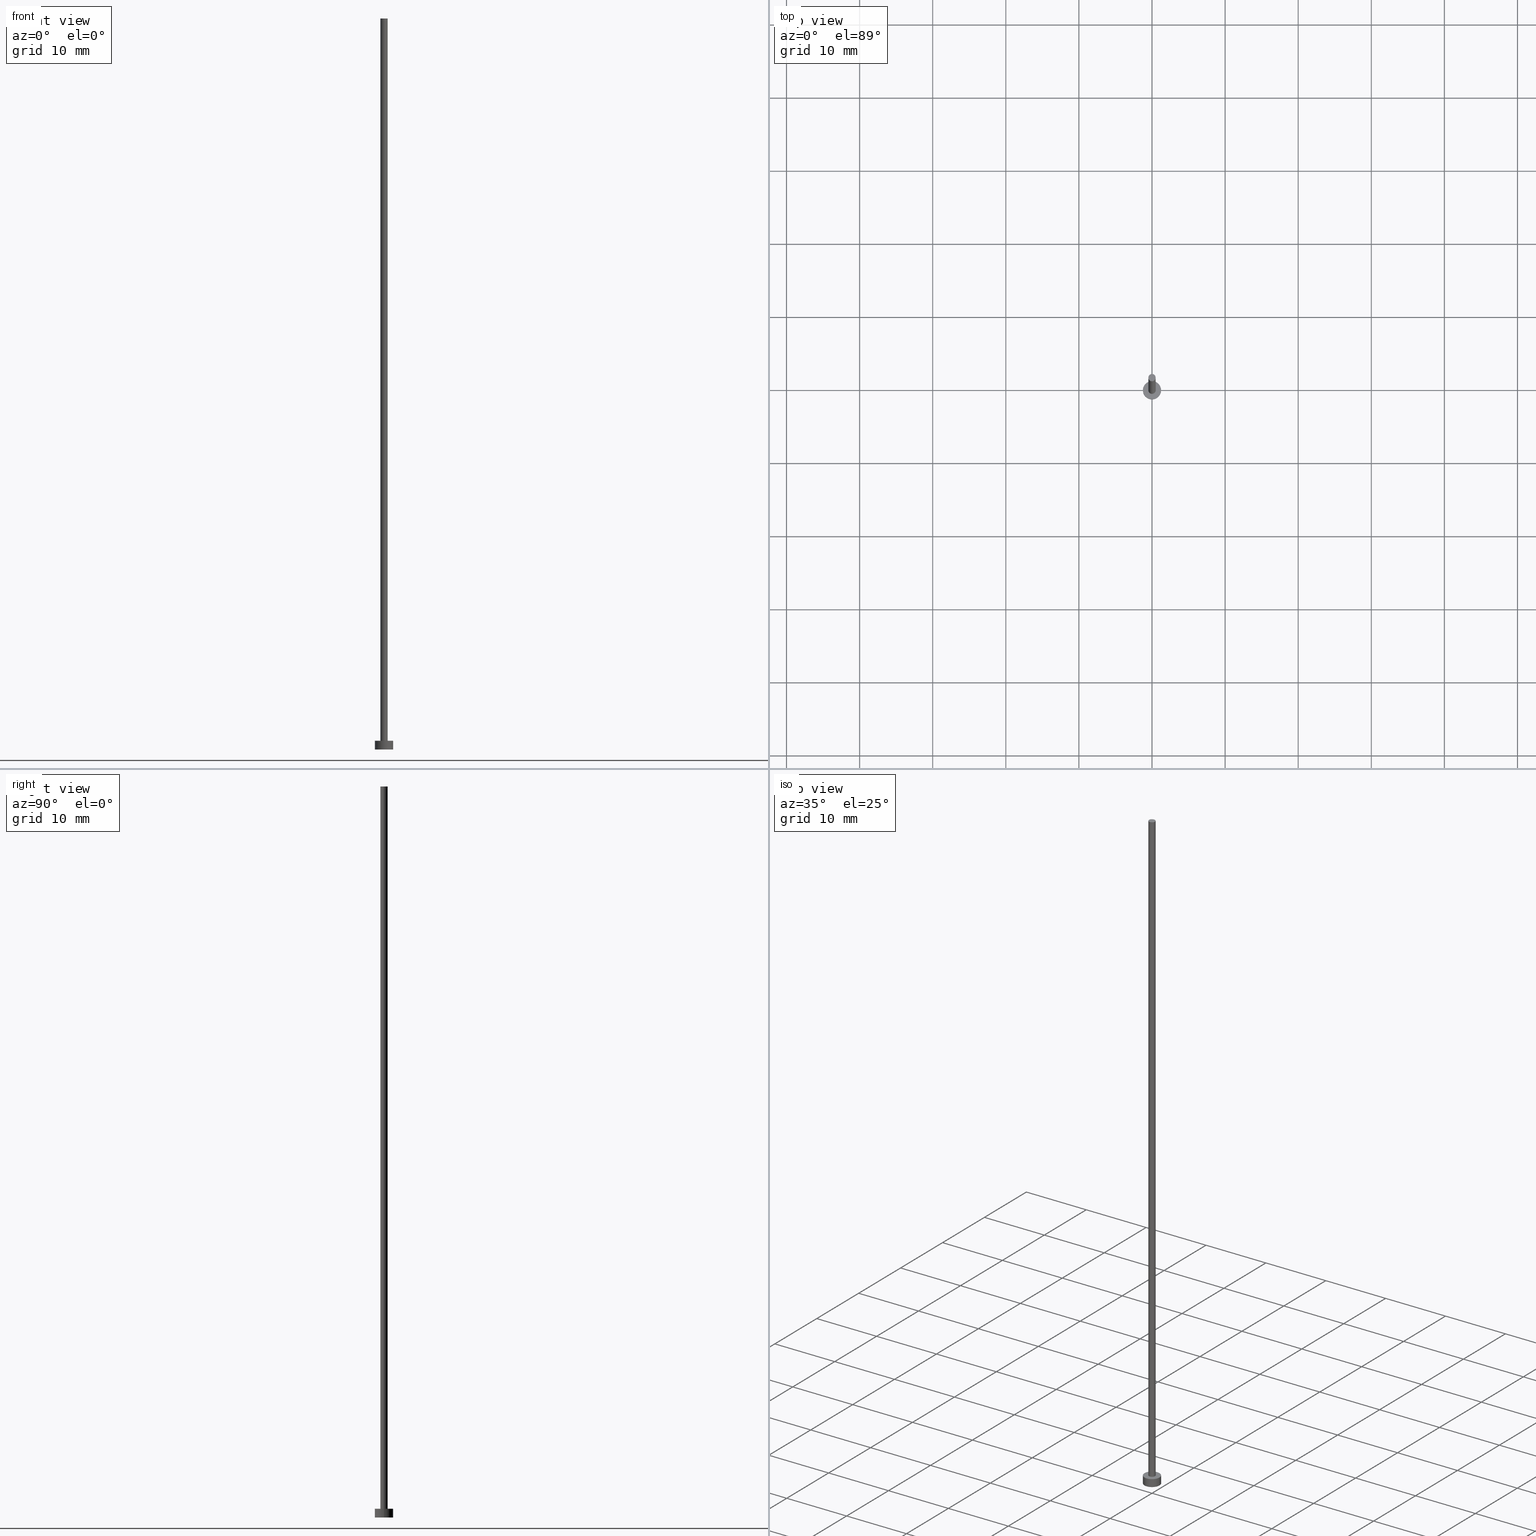
[diagram: canonical four-view strip — front | top / right | iso, engineering-drawing reading convention]
A machine part, canonical four-view strip (front | top / right | iso — engineering-drawing reading convention). The complete STEP part file that produces these views, byte-faithful:
ISO-10303-21;
HEADER;
FILE_DESCRIPTION (( 'STEP AP203' ),
    '1' );
FILE_NAME ('c041.STEP',
    '2025-01-10T07:01:05',
    ( '' ),
    ( '' ),
    'SwSTEP 2.0',
    'SolidWorks 2019',
    '' );
FILE_SCHEMA (( 'CONFIG_CONTROL_DESIGN' ));
ENDSEC;

DATA;
#1 = COORDINATED_UNIVERSAL_TIME_OFFSET ( 1, 0, .AHEAD. ) ;
#2 = PERSON_AND_ORGANIZATION_ROLE ( 'creator' ) ;
#3 = ADVANCED_FACE ( 'NONE', ( #73 ), #168, .T. ) ;
#4 = ORIENTED_EDGE ( 'NONE', *, *, #186, .F. ) ;
#5 = EDGE_LOOP ( 'NONE', ( #25, #167, #219, #148 ) ) ;
#6 = AXIS2_PLACEMENT_3D ( 'NONE', #111, #10, #96 ) ;
#7 = EDGE_LOOP ( 'NONE', ( #204, #187 ) ) ;
#8 =( GEOMETRIC_REPRESENTATION_CONTEXT ( 3 ) GLOBAL_UNCERTAINTY_ASSIGNED_CONTEXT ( ( #94 ) ) GLOBAL_UNIT_ASSIGNED_CONTEXT ( ( #120, #47, #160 ) ) REPRESENTATION_CONTEXT ( 'NONE', 'WORKASPACE' ) );
#9 = ORIENTED_EDGE ( 'NONE', *, *, #218, .F. ) ;
#10 = DIRECTION ( 'NONE',  ( 0.000000000000000000, 0.000000000000000000, 1.000000000000000000 ) ) ;
#11 = CARTESIAN_POINT ( 'NONE',  ( -1.250000000000000000, 0.000000000000000000, 0.000000000000000000 ) ) ;
#12 = AXIS2_PLACEMENT_3D ( 'NONE', #115, #232, #173 ) ;
#13 = DIRECTION ( 'NONE',  ( 0.000000000000000000, 0.000000000000000000, 1.000000000000000000 ) ) ;
#14 = COORDINATED_UNIVERSAL_TIME_OFFSET ( 1, 0, .AHEAD. ) ;
#15 = FACE_OUTER_BOUND ( 'NONE', #30, .T. ) ;
#16 = LINE ( 'NONE', #102, #155 ) ;
#17 = CIRCLE ( 'NONE', #42, 0.5000000000000000000 ) ;
#18 = APPROVAL_STATUS ( 'not_yet_approved' ) ;
#19 = DIRECTION ( 'NONE',  ( 0.000000000000000000, 0.000000000000000000, 1.000000000000000000 ) ) ;
#20 = CC_DESIGN_APPROVAL ( #121, ( #166 ) ) ;
#21 = EDGE_CURVE ( 'NONE', #29, #225, #75, .T. ) ;
#22 = CALENDAR_DATE ( 2025, 10, 1 ) ;
#23 = APPLICATION_PROTOCOL_DEFINITION ( 'international standard', 'config_control_design', 1994, #211 ) ;
#24 = PERSON_AND_ORGANIZATION ( #196, #157 ) ;
#25 = ORIENTED_EDGE ( 'NONE', *, *, #63, .F. ) ;
#26 = ADVANCED_FACE ( 'NONE', ( #131, #56 ), #206, .T. ) ;
#27 = AXIS2_PLACEMENT_3D ( 'NONE', #142, #180, #86 ) ;
#28 = EDGE_LOOP ( 'NONE', ( #223, #241 ) ) ;
#29 = VERTEX_POINT ( 'NONE', #240 ) ;
#30 = EDGE_LOOP ( 'NONE', ( #49, #205 ) ) ;
#31 = AXIS2_PLACEMENT_3D ( 'NONE', #116, #64, #98 ) ;
#32 = ORIENTED_EDGE ( 'NONE', *, *, #114, .T. ) ;
#33 = LINE ( 'NONE', #245, #161 ) ;
#34 = CARTESIAN_POINT ( 'NONE',  ( 0.5000000000000000000, 6.123233995736766036E-17, 1.199999999999999956 ) ) ;
#35 = DIRECTION ( 'NONE',  ( 1.000000000000000000, 0.000000000000000000, 0.000000000000000000 ) ) ;
#36 = VECTOR ( 'NONE', #252, 1000.000000000000000 ) ;
#37 = APPROVAL_DATE_TIME ( #230, #107 ) ;
#38 = DIRECTION ( 'NONE',  ( -0.000000000000000000, -0.000000000000000000, -1.000000000000000000 ) ) ;
#39 = PERSON_AND_ORGANIZATION ( #196, #157 ) ;
#40 = CARTESIAN_POINT ( 'NONE',  ( 0.000000000000000000, 0.000000000000000000, 0.000000000000000000 ) ) ;
#41 = EDGE_CURVE ( 'NONE', #76, #52, #16, .T. ) ;
#42 = AXIS2_PLACEMENT_3D ( 'NONE', #113, #193, #35 ) ;
#43 = LOCAL_TIME ( 8, 1, 5.000000000000000000, #1 ) ;
#44 = APPROVAL_STATUS ( 'not_yet_approved' ) ;
#45 = COORDINATED_UNIVERSAL_TIME_OFFSET ( 1, 0, .AHEAD. ) ;
#46 = CC_DESIGN_DATE_AND_TIME_ASSIGNMENT ( #228, #197, ( #239 ) ) ;
#47 =( NAMED_UNIT ( * ) PLANE_ANGLE_UNIT ( ) SI_UNIT ( $, .RADIAN. ) );
#48 = AXIS2_PLACEMENT_3D ( 'NONE', #134, #158, #80 ) ;
#49 = ORIENTED_EDGE ( 'NONE', *, *, #159, .F. ) ;
#50 = ADVANCED_FACE ( 'NONE', ( #62 ), #101, .T. ) ;
#51 = ORIENTED_EDGE ( 'NONE', *, *, #89, .T. ) ;
#52 = VERTEX_POINT ( 'NONE', #136 ) ;
#53 = DIRECTION ( 'NONE',  ( -0.000000000000000000, -0.000000000000000000, -1.000000000000000000 ) ) ;
#54 = DESIGN_CONTEXT ( 'detailed design', #211, 'design' ) ;
#55 = CC_DESIGN_DATE_AND_TIME_ASSIGNMENT ( #182, #143, ( #166 ) ) ;
#56 = FACE_OUTER_BOUND ( 'NONE', #28, .T. ) ;
#57 = CYLINDRICAL_SURFACE ( 'NONE', #242, 1.250000000000000000 ) ;
#58 = CARTESIAN_POINT ( 'NONE',  ( 0.000000000000000000, 0.000000000000000000, 1.199999999999999956 ) ) ;
#59 = APPROVAL_ROLE ( '' ) ;
#60 = CARTESIAN_POINT ( 'NONE',  ( 0.000000000000000000, 0.000000000000000000, 1.199999999999999956 ) ) ;
#61 = CIRCLE ( 'NONE', #202, 1.250000000000000000 ) ;
#62 = FACE_OUTER_BOUND ( 'NONE', #171, .T. ) ;
#63 = EDGE_CURVE ( 'NONE', #76, #221, #214, .T. ) ;
#64 = DIRECTION ( 'NONE',  ( 0.000000000000000000, 0.000000000000000000, 1.000000000000000000 ) ) ;
#65 = COORDINATED_UNIVERSAL_TIME_OFFSET ( 1, 0, .AHEAD. ) ;
#66 = APPROVAL_ROLE ( '' ) ;
#67 = DIRECTION ( 'NONE',  ( 1.000000000000000000, 0.000000000000000000, 0.000000000000000000 ) ) ;
#68 = CC_DESIGN_APPROVAL ( #172, ( #165 ) ) ;
#69 = APPROVAL_DATE_TIME ( #201, #121 ) ;
#70 = APPROVAL_STATUS ( 'not_yet_approved' ) ;
#71 = ADVANCED_FACE ( 'NONE', ( #153 ), #57, .T. ) ;
#72 = ORIENTED_EDGE ( 'NONE', *, *, #21, .T. ) ;
#73 = FACE_OUTER_BOUND ( 'NONE', #7, .T. ) ;
#74 = VERTEX_POINT ( 'NONE', #11 ) ;
#75 = LINE ( 'NONE', #150, #251 ) ;
#76 = VERTEX_POINT ( 'NONE', #194 ) ;
#77 = AXIS2_PLACEMENT_3D ( 'NONE', #60, #137, #78 ) ;
#78 = DIRECTION ( 'NONE',  ( -1.000000000000000000, 0.000000000000000000, 0.000000000000000000 ) ) ;
#79 = LOCAL_TIME ( 8, 1, 5.000000000000000000, #45 ) ;
#80 = DIRECTION ( 'NONE',  ( -1.000000000000000000, 0.000000000000000000, 0.000000000000000000 ) ) ;
#81 = CYLINDRICAL_SURFACE ( 'NONE', #192, 0.5000000000000000000 ) ;
#82 = DIRECTION ( 'NONE',  ( 1.000000000000000000, 0.000000000000000000, 0.000000000000000000 ) ) ;
#83 = AXIS2_PLACEMENT_3D ( 'NONE', #227, #209, #99 ) ;
#84 = CYLINDRICAL_SURFACE ( 'NONE', #48, 0.5000000000000000000 ) ;
#85 = CC_DESIGN_PERSON_AND_ORGANIZATION_ASSIGNMENT ( #203, #104, ( #165 ) ) ;
#86 = DIRECTION ( 'NONE',  ( 1.000000000000000000, 0.000000000000000000, 0.000000000000000000 ) ) ;
#87 = CIRCLE ( 'NONE', #220, 1.250000000000000000 ) ;
#88 = PRODUCT ( 'c041', 'c041', '', ( #162 ) ) ;
#89 = EDGE_CURVE ( 'NONE', #225, #190, #17, .T. ) ;
#90 = ORIENTED_EDGE ( 'NONE', *, *, #21, .F. ) ;
#91 = VERTEX_POINT ( 'NONE', #154 ) ;
#92 = CLOSED_SHELL ( 'NONE', ( #105, #71, #50, #26, #141, #178, #3 ) ) ;
#93 = DIRECTION ( 'NONE',  ( 0.000000000000000000, 0.000000000000000000, 1.000000000000000000 ) ) ;
#94 = UNCERTAINTY_MEASURE_WITH_UNIT (LENGTH_MEASURE( 1.000000000000000082E-05 ), #120, 'distance_accuracy_value', 'NONE');
#95 = CARTESIAN_POINT ( 'NONE',  ( 0.000000000000000000, 0.000000000000000000, 100.0000000000000000 ) ) ;
#96 = DIRECTION ( 'NONE',  ( 1.000000000000000000, 0.000000000000000000, -0.000000000000000000 ) ) ;
#97 = EDGE_CURVE ( 'NONE', #91, #29, #128, .T. ) ;
#98 = DIRECTION ( 'NONE',  ( 1.000000000000000000, 0.000000000000000000, -0.000000000000000000 ) ) ;
#99 = DIRECTION ( 'NONE',  ( 1.000000000000000000, 0.000000000000000000, 0.000000000000000000 ) ) ;
#100 = CALENDAR_DATE ( 2025, 10, 1 ) ;
#101 = CYLINDRICAL_SURFACE ( 'NONE', #77, 1.250000000000000000 ) ;
#102 = CARTESIAN_POINT ( 'NONE',  ( 1.250000000000000000, 1.530808498934191571E-16, 1.199999999999999956 ) ) ;
#103 = PERSON_AND_ORGANIZATION ( #196, #157 ) ;
#104 = PERSON_AND_ORGANIZATION_ROLE ( 'creator' ) ;
#105 = ADVANCED_FACE ( 'NONE', ( #229 ), #81, .T. ) ;
#106 = ORIENTED_EDGE ( 'NONE', *, *, #41, .F. ) ;
#107 = APPROVAL ( #18, 'NEUR�EN�' ) ;
#108 = EDGE_LOOP ( 'NONE', ( #188, #4, #72, #51 ) ) ;
#109 = ORIENTED_EDGE ( 'NONE', *, *, #97, .F. ) ;
#110 = LOCAL_TIME ( 8, 1, 5.000000000000000000, #140 ) ;
#111 = CARTESIAN_POINT ( 'NONE',  ( 0.000000000000000000, 0.000000000000000000, 1.199999999999999956 ) ) ;
#112 = DIRECTION ( 'NONE',  ( -0.000000000000000000, -0.000000000000000000, -1.000000000000000000 ) ) ;
#113 = CARTESIAN_POINT ( 'NONE',  ( 0.000000000000000000, 0.000000000000000000, 1.199999999999999956 ) ) ;
#114 = EDGE_CURVE ( 'NONE', #221, #74, #33, .T. ) ;
#115 = CARTESIAN_POINT ( 'NONE',  ( 0.000000000000000000, 0.000000000000000000, 100.0000000000000000 ) ) ;
#116 = CARTESIAN_POINT ( 'NONE',  ( 0.000000000000000000, 0.000000000000000000, 0.000000000000000000 ) ) ;
#117 = CARTESIAN_POINT ( 'NONE',  ( 0.000000000000000000, 0.000000000000000000, 1.199999999999999956 ) ) ;
#118 = CALENDAR_DATE ( 2025, 10, 1 ) ;
#119 = LOCAL_TIME ( 8, 1, 5.000000000000000000, #65 ) ;
#120 =( LENGTH_UNIT ( ) NAMED_UNIT ( * ) SI_UNIT ( .MILLI., .METRE. ) );
#121 = APPROVAL ( #44, 'NEUR�EN�' ) ;
#122 = APPROVAL_ROLE ( '' ) ;
#123 = APPROVAL_DATE_TIME ( #217, #172 ) ;
#124 = EDGE_CURVE ( 'NONE', #221, #76, #87, .T. ) ;
#125 = CIRCLE ( 'NONE', #83, 0.5000000000000000000 ) ;
#126 = MANIFOLD_SOLID_BREP ( 'P�idat vysunut�m3', #92 ) ;
#127 = ORIENTED_EDGE ( 'NONE', *, *, #218, .T. ) ;
#128 = CIRCLE ( 'NONE', #12, 0.5000000000000000000 ) ;
#129 = EDGE_LOOP ( 'NONE', ( #169, #9 ) ) ;
#130 = LOCAL_TIME ( 8, 1, 5.000000000000000000, #14 ) ;
#131 = FACE_BOUND ( 'NONE', #129, .T. ) ;
#132 = CC_DESIGN_APPROVAL ( #107, ( #239 ) ) ;
#133 = DIRECTION ( 'NONE',  ( -1.000000000000000000, 0.000000000000000000, 0.000000000000000000 ) ) ;
#134 = CARTESIAN_POINT ( 'NONE',  ( 0.000000000000000000, 0.000000000000000000, 100.0000000000000000 ) ) ;
#135 = APPLICATION_CONTEXT ( 'configuration controlled 3d designs of mechanical parts and assemblies' ) ;
#136 = CARTESIAN_POINT ( 'NONE',  ( 1.250000000000000000, 1.530808498934191571E-16, 0.000000000000000000 ) ) ;
#137 = DIRECTION ( 'NONE',  ( -0.000000000000000000, -0.000000000000000000, -1.000000000000000000 ) ) ;
#138 = DIRECTION ( 'NONE',  ( 0.000000000000000000, 0.000000000000000000, 1.000000000000000000 ) ) ;
#139 = SHAPE_DEFINITION_REPRESENTATION ( #145, #255 ) ;
#140 = COORDINATED_UNIVERSAL_TIME_OFFSET ( 1, 0, .AHEAD. ) ;
#141 = ADVANCED_FACE ( 'NONE', ( #15 ), #176, .F. ) ;
#142 = CARTESIAN_POINT ( 'NONE',  ( 0.000000000000000000, 0.000000000000000000, 0.000000000000000000 ) ) ;
#143 = DATE_TIME_ROLE ( 'creation_date' ) ;
#144 = CALENDAR_DATE ( 2025, 10, 1 ) ;
#145 = PRODUCT_DEFINITION_SHAPE ( 'NONE', 'NONE',  #166 ) ;
#146 = APPROVAL_PERSON_ORGANIZATION ( #39, #107, #59 ) ;
#147 = EDGE_LOOP ( 'NONE', ( #109, #224, #127, #90 ) ) ;
#148 = ORIENTED_EDGE ( 'NONE', *, *, #114, .F. ) ;
#149 = ORIENTED_EDGE ( 'NONE', *, *, #159, .T. ) ;
#150 = CARTESIAN_POINT ( 'NONE',  ( -0.5000000000000000000, 0.000000000000000000, 100.0000000000000000 ) ) ;
#151 = AXIS2_PLACEMENT_3D ( 'NONE', #95, #93, #244 ) ;
#152 = FACE_OUTER_BOUND ( 'NONE', #108, .T. ) ;
#153 = FACE_OUTER_BOUND ( 'NONE', #5, .T. ) ;
#154 = CARTESIAN_POINT ( 'NONE',  ( 0.5000000000000000000, 6.123233995736766036E-17, 100.0000000000000000 ) ) ;
#155 = VECTOR ( 'NONE', #156, 1000.000000000000000 ) ;
#156 = DIRECTION ( 'NONE',  ( -0.000000000000000000, -0.000000000000000000, -1.000000000000000000 ) ) ;
#157 = ORGANIZATION ( 'NEUR�EN�', 'NEUR�EN�', '' ) ;
#158 = DIRECTION ( 'NONE',  ( -0.000000000000000000, -0.000000000000000000, -1.000000000000000000 ) ) ;
#159 = EDGE_CURVE ( 'NONE', #74, #52, #237, .T. ) ;
#160 =( NAMED_UNIT ( * ) SI_UNIT ( $, .STERADIAN. ) SOLID_ANGLE_UNIT ( ) );
#161 = VECTOR ( 'NONE', #112, 1000.000000000000000 ) ;
#162 = MECHANICAL_CONTEXT ( 'NONE', #135, 'mechanical' ) ;
#163 = PERSON_AND_ORGANIZATION ( #196, #157 ) ;
#164 = PRODUCT_RELATED_PRODUCT_CATEGORY ( 'detail', '', ( #88 ) ) ;
#165 = PRODUCT_DEFINITION_FORMATION_WITH_SPECIFIED_SOURCE ( 'LIBOVOLN�', '', #88, .NOT_KNOWN. ) ;
#166 = PRODUCT_DEFINITION ( 'NEZN�M�', '', #165, #54 ) ;
#167 = ORIENTED_EDGE ( 'NONE', *, *, #41, .T. ) ;
#168 = PLANE ( 'NONE',  #151 ) ;
#169 = ORIENTED_EDGE ( 'NONE', *, *, #89, .F. ) ;
#170 = EDGE_CURVE ( 'NONE', #91, #190, #195, .T. ) ;
#171 = EDGE_LOOP ( 'NONE', ( #106, #243, #32, #149 ) ) ;
#172 = APPROVAL ( #70, 'NEUR�EN�' ) ;
#173 = DIRECTION ( 'NONE',  ( 1.000000000000000000, 0.000000000000000000, 0.000000000000000000 ) ) ;
#174 = CARTESIAN_POINT ( 'NONE',  ( 0.5000000000000000000, 6.123233995736766036E-17, 100.0000000000000000 ) ) ;
#175 = CARTESIAN_POINT ( 'NONE',  ( -1.250000000000000000, 0.000000000000000000, 1.199999999999999956 ) ) ;
#176 = PLANE ( 'NONE',  #31 ) ;
#177 = DIRECTION ( 'NONE',  ( -0.000000000000000000, -0.000000000000000000, -1.000000000000000000 ) ) ;
#178 = ADVANCED_FACE ( 'NONE', ( #152 ), #84, .T. ) ;
#179 = PERSON_AND_ORGANIZATION ( #196, #157 ) ;
#180 = DIRECTION ( 'NONE',  ( 0.000000000000000000, 0.000000000000000000, 1.000000000000000000 ) ) ;
#181 = AXIS2_PLACEMENT_3D ( 'NONE', #58, #249, #246 ) ;
#182 = DATE_AND_TIME ( #238, #43 ) ;
#183 = CC_DESIGN_SECURITY_CLASSIFICATION ( #239, ( #165 ) ) ;
#184 = CC_DESIGN_PERSON_AND_ORGANIZATION_ASSIGNMENT ( #179, #248, ( #239 ) ) ;
#185 = SECURITY_CLASSIFICATION_LEVEL ( 'unclassified' ) ;
#186 = EDGE_CURVE ( 'NONE', #29, #91, #189, .T. ) ;
#187 = ORIENTED_EDGE ( 'NONE', *, *, #97, .T. ) ;
#188 = ORIENTED_EDGE ( 'NONE', *, *, #170, .F. ) ;
#189 = CIRCLE ( 'NONE', #233, 0.5000000000000000000 ) ;
#190 = VERTEX_POINT ( 'NONE', #34 ) ;
#191 = CARTESIAN_POINT ( 'NONE',  ( 0.000000000000000000, 0.000000000000000000, 1.199999999999999956 ) ) ;
#192 = AXIS2_PLACEMENT_3D ( 'NONE', #212, #177, #133 ) ;
#193 = DIRECTION ( 'NONE',  ( 0.000000000000000000, 0.000000000000000000, 1.000000000000000000 ) ) ;
#194 = CARTESIAN_POINT ( 'NONE',  ( 1.250000000000000000, 1.530808498934191571E-16, 1.199999999999999956 ) ) ;
#195 = LINE ( 'NONE', #174, #36 ) ;
#196 = PERSON ( 'NEUR�EN�', 'NEUR�EN�', 'NEUR�EN�', ('NEUR�EN�'), ('NEUR�EN�'), ('NEUR�EN�') ) ;
#197 = DATE_TIME_ROLE ( 'classification_date' ) ;
#198 = DIRECTION ( 'NONE',  ( 1.000000000000000000, 0.000000000000000000, 0.000000000000000000 ) ) ;
#199 = CC_DESIGN_PERSON_AND_ORGANIZATION_ASSIGNMENT ( #24, #254, ( #165 ) ) ;
#200 = PERSON_AND_ORGANIZATION_ROLE ( 'design_owner' ) ;
#201 = DATE_AND_TIME ( #22, #110 ) ;
#202 = AXIS2_PLACEMENT_3D ( 'NONE', #40, #19, #67 ) ;
#203 = PERSON_AND_ORGANIZATION ( #196, #157 ) ;
#204 = ORIENTED_EDGE ( 'NONE', *, *, #186, .T. ) ;
#205 = ORIENTED_EDGE ( 'NONE', *, *, #226, .F. ) ;
#206 = PLANE ( 'NONE',  #6 ) ;
#207 = DIRECTION ( 'NONE',  ( 1.000000000000000000, 0.000000000000000000, 0.000000000000000000 ) ) ;
#208 = CC_DESIGN_PERSON_AND_ORGANIZATION_ASSIGNMENT ( #103, #200, ( #88 ) ) ;
#209 = DIRECTION ( 'NONE',  ( 0.000000000000000000, 0.000000000000000000, 1.000000000000000000 ) ) ;
#210 = DIRECTION ( 'NONE',  ( -1.000000000000000000, 0.000000000000000000, 0.000000000000000000 ) ) ;
#211 = APPLICATION_CONTEXT ( 'configuration controlled 3d designs of mechanical parts and assemblies' ) ;
#212 = CARTESIAN_POINT ( 'NONE',  ( 0.000000000000000000, 0.000000000000000000, 100.0000000000000000 ) ) ;
#213 = CARTESIAN_POINT ( 'NONE',  ( -0.5000000000000000000, 0.000000000000000000, 1.199999999999999956 ) ) ;
#214 = CIRCLE ( 'NONE', #181, 1.250000000000000000 ) ;
#215 = APPLICATION_PROTOCOL_DEFINITION ( 'international standard', 'config_control_design', 1994, #135 ) ;
#216 = PERSON_AND_ORGANIZATION ( #196, #157 ) ;
#217 = DATE_AND_TIME ( #144, #79 ) ;
#218 = EDGE_CURVE ( 'NONE', #190, #225, #125, .T. ) ;
#219 = ORIENTED_EDGE ( 'NONE', *, *, #226, .T. ) ;
#220 = AXIS2_PLACEMENT_3D ( 'NONE', #117, #231, #198 ) ;
#221 = VERTEX_POINT ( 'NONE', #175 ) ;
#222 = APPROVAL_PERSON_ORGANIZATION ( #235, #121, #122 ) ;
#223 = ORIENTED_EDGE ( 'NONE', *, *, #124, .T. ) ;
#224 = ORIENTED_EDGE ( 'NONE', *, *, #170, .T. ) ;
#225 = VERTEX_POINT ( 'NONE', #213 ) ;
#226 = EDGE_CURVE ( 'NONE', #52, #74, #61, .T. ) ;
#227 = CARTESIAN_POINT ( 'NONE',  ( 0.000000000000000000, 0.000000000000000000, 1.199999999999999956 ) ) ;
#228 = DATE_AND_TIME ( #118, #119 ) ;
#229 = FACE_OUTER_BOUND ( 'NONE', #147, .T. ) ;
#230 = DATE_AND_TIME ( #100, #130 ) ;
#231 = DIRECTION ( 'NONE',  ( 0.000000000000000000, 0.000000000000000000, 1.000000000000000000 ) ) ;
#232 = DIRECTION ( 'NONE',  ( 0.000000000000000000, 0.000000000000000000, 1.000000000000000000 ) ) ;
#233 = AXIS2_PLACEMENT_3D ( 'NONE', #234, #138, #207 ) ;
#234 = CARTESIAN_POINT ( 'NONE',  ( 0.000000000000000000, 0.000000000000000000, 100.0000000000000000 ) ) ;
#235 = PERSON_AND_ORGANIZATION ( #196, #157 ) ;
#236 = CC_DESIGN_PERSON_AND_ORGANIZATION_ASSIGNMENT ( #163, #2, ( #166 ) ) ;
#237 = CIRCLE ( 'NONE', #247, 1.250000000000000000 ) ;
#238 = CALENDAR_DATE ( 2025, 10, 1 ) ;
#239 = SECURITY_CLASSIFICATION ( '', '', #185 ) ;
#240 = CARTESIAN_POINT ( 'NONE',  ( -0.5000000000000000000, 0.000000000000000000, 100.0000000000000000 ) ) ;
#241 = ORIENTED_EDGE ( 'NONE', *, *, #63, .T. ) ;
#242 = AXIS2_PLACEMENT_3D ( 'NONE', #191, #38, #210 ) ;
#243 = ORIENTED_EDGE ( 'NONE', *, *, #124, .F. ) ;
#244 = DIRECTION ( 'NONE',  ( 1.000000000000000000, 0.000000000000000000, -0.000000000000000000 ) ) ;
#245 = CARTESIAN_POINT ( 'NONE',  ( -1.250000000000000000, 0.000000000000000000, 1.199999999999999956 ) ) ;
#246 = DIRECTION ( 'NONE',  ( 1.000000000000000000, 0.000000000000000000, 0.000000000000000000 ) ) ;
#247 = AXIS2_PLACEMENT_3D ( 'NONE', #250, #13, #82 ) ;
#248 = PERSON_AND_ORGANIZATION_ROLE ( 'classification_officer' ) ;
#249 = DIRECTION ( 'NONE',  ( 0.000000000000000000, 0.000000000000000000, 1.000000000000000000 ) ) ;
#250 = CARTESIAN_POINT ( 'NONE',  ( 0.000000000000000000, 0.000000000000000000, 0.000000000000000000 ) ) ;
#251 = VECTOR ( 'NONE', #53, 1000.000000000000000 ) ;
#252 = DIRECTION ( 'NONE',  ( -0.000000000000000000, -0.000000000000000000, -1.000000000000000000 ) ) ;
#253 = APPROVAL_PERSON_ORGANIZATION ( #216, #172, #66 ) ;
#254 = PERSON_AND_ORGANIZATION_ROLE ( 'design_supplier' ) ;
#255 = ADVANCED_BREP_SHAPE_REPRESENTATION ( 'c041', ( #126, #27 ), #8 ) ;
ENDSEC;
END-ISO-10303-21;
